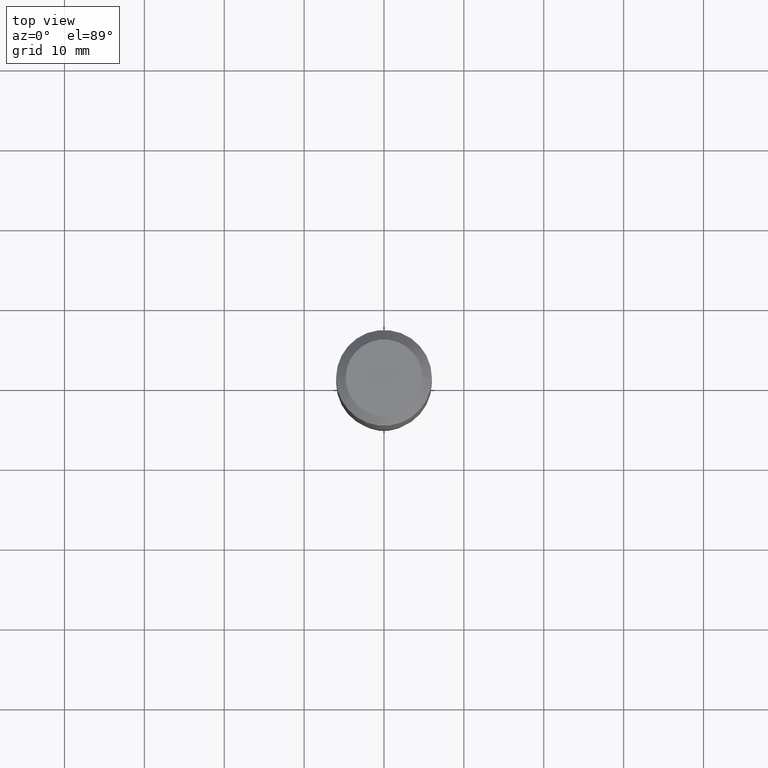
[diagram: clean part render]
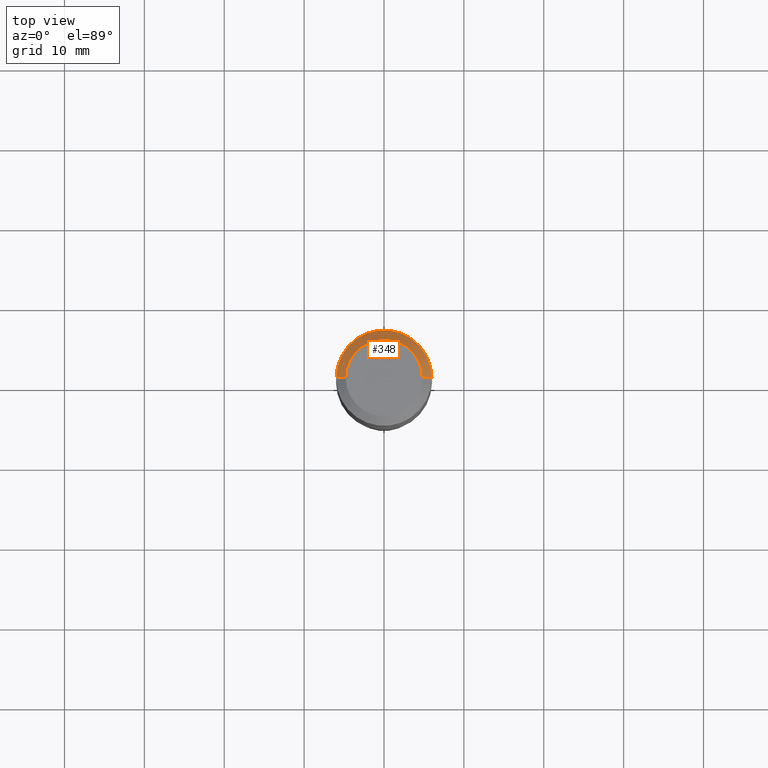
[diagram: same view with one face highlighted and labeled with its STEP entity id]
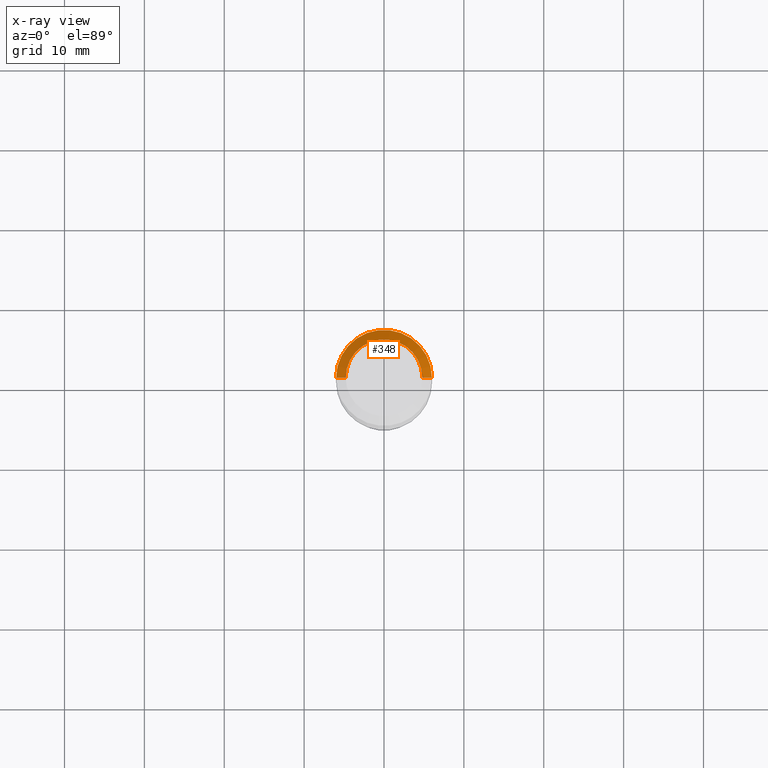
[diagram: x-ray of the same camera — body ghosted, the highlighted face saturated]
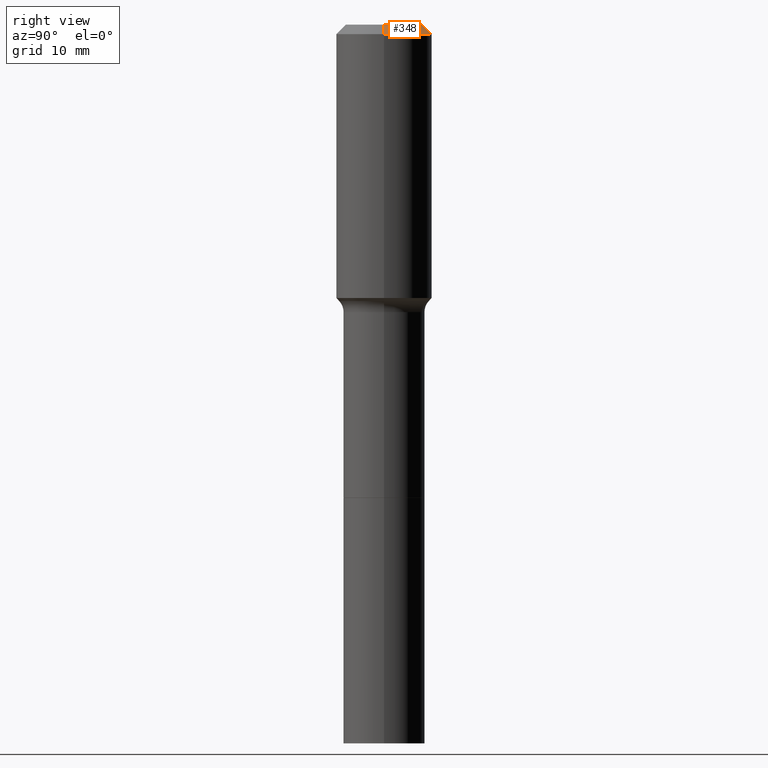
[diagram: same view with one face highlighted and labeled with its STEP entity id]
A machine part, top view. The second image highlights one B-rep face of the part: STEP entity #348.
The next image is the same camera in x-ray: the body ghosted, the highlighted face saturated — about 0% of this face is hidden behind the body in this view.
A second angle (right view) of the same face is appended — the face is thin or edge-on in the first view.
In plain terms, the highlighted conical surface has half-angle 45 deg.
Its self-contained STEP definition (entity closure, byte-faithful):
#2 = DIRECTION ( 'NONE',  ( 2.445468806185136597E-29, -3.491481338843145583E-15, -1.000000000000000000 ) ) ;
#8 = DIRECTION ( 'NONE',  ( 0.7071067811865453523, -7.319954787623248157E-15, -0.7071067811865496822 ) ) ;
#13 = ORIENTED_EDGE ( 'NONE', *, *, #274, .T. ) ;
#35 = DIRECTION ( 'NONE',  ( -2.445468806185136597E-29, 3.491481338843145583E-15, 1.000000000000000000 ) ) ;
#46 = LINE ( 'NONE', #171, #381 ) ;
#60 = ORIENTED_EDGE ( 'NONE', *, *, #441, .T. ) ;
#85 = CARTESIAN_POINT ( 'NONE',  ( -9.427742298522546243E-47, 1.346031739168365344E-32, 3.855188123715862256E-18 ) ) ;
#112 = CIRCLE ( 'NONE', #214, 0.1889600000000000168 ) ;
#144 = CIRCLE ( 'NONE', #437, 0.2361999999999999933 ) ;
#156 = CARTESIAN_POINT ( 'NONE',  ( -0.2361999999999999933, -7.571203056303714610E-16, -0.04724000000000027483 ) ) ;
#171 = CARTESIAN_POINT ( 'NONE',  ( 0.2361999999999999933, -1.785387205520586782E-15, -0.04724000000000027483 ) ) ;
#179 = EDGE_CURVE ( 'NONE', #254, #369, #391, .T. ) ;
#190 = DIRECTION ( 'NONE',  ( 1.000000000000000000, -6.982962677686266711E-15, 0.000000000000000000 ) ) ;
#197 = ORIENTED_EDGE ( 'NONE', *, *, #294, .F. ) ;
#214 = AXIS2_PLACEMENT_3D ( 'NONE', #85, #482, #321 ) ;
#219 = VERTEX_POINT ( 'NONE', #227 ) ;
#222 = CARTESIAN_POINT ( 'NONE',  ( -0.1889600000000000168, 1.401969416799070942E-15, 3.855188123706346622E-18 ) ) ;
#227 = CARTESIAN_POINT ( 'NONE',  ( 0.1889600000000000168, -1.540873453589747738E-15, 3.855188123725863225E-18 ) ) ;
#233 = VECTOR ( 'NONE', #264, 39.37007874015748143 ) ;
#244 = VERTEX_POINT ( 'NONE', #514 ) ;
#254 = VERTEX_POINT ( 'NONE', #222 ) ;
#264 = DIRECTION ( 'NONE',  ( -0.7071067811865453523, 2.468850131082234184E-15, -0.7071067811865496822 ) ) ;
#269 = ORIENTED_EDGE ( 'NONE', *, *, #179, .F. ) ;
#274 = EDGE_CURVE ( 'NONE', #244, #369, #144, .T. ) ;
#280 = EDGE_LOOP ( 'NONE', ( #197, #60, #13, #269 ) ) ;
#294 = EDGE_CURVE ( 'NONE', #219, #254, #112, .T. ) ;
#308 = CARTESIAN_POINT ( 'NONE',  ( 1.155239464041865331E-30, -1.649375784469511612E-16, -0.04724000000000027483 ) ) ;
#321 = DIRECTION ( 'NONE',  ( 1.000000000000000000, -6.982962677686266711E-15, 4.876185090822587894E-29 ) ) ;
#342 = AXIS2_PLACEMENT_3D ( 'NONE', #361, #2, #394 ) ;
#348 = ADVANCED_FACE ( 'NONE', ( #359 ), #505, .T. ) ;
#359 = FACE_OUTER_BOUND ( 'NONE', #280, .T. ) ;
#361 = CARTESIAN_POINT ( 'NONE',  ( 1.155239464041865331E-30, -1.649375784469511612E-16, -0.04724000000000027483 ) ) ;
#369 = VERTEX_POINT ( 'NONE', #156 ) ;
#381 = VECTOR ( 'NONE', #8, 39.37007874015748143 ) ;
#391 = LINE ( 'NONE', #427, #233 ) ;
#394 = DIRECTION ( 'NONE',  ( -1.000000000000000000, 6.982962677686266711E-15, 0.000000000000000000 ) ) ;
#427 = CARTESIAN_POINT ( 'NONE',  ( -0.2361999999999999933, 1.484438206022545019E-15, -0.04724000000000027483 ) ) ;
#437 = AXIS2_PLACEMENT_3D ( 'NONE', #308, #35, #190 ) ;
#441 = EDGE_CURVE ( 'NONE', #219, #244, #46, .T. ) ;
#482 = DIRECTION ( 'NONE',  ( -2.445468806185136597E-29, 3.491481338843145583E-15, 1.000000000000000000 ) ) ;
#505 = CONICAL_SURFACE ( 'NONE', #342, 0.2361999999999999933, 0.7853981633974452814 ) ;
#514 = CARTESIAN_POINT ( 'NONE',  ( 0.2361999999999999933, -1.814313362916447440E-15, -0.04724000000000027483 ) ) ;